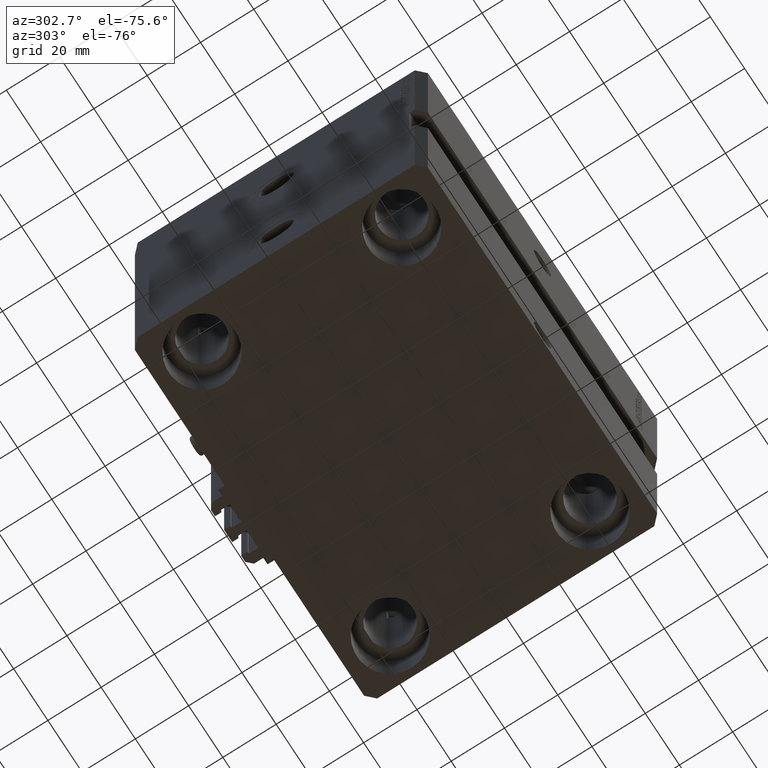
[diagram: clean part render]
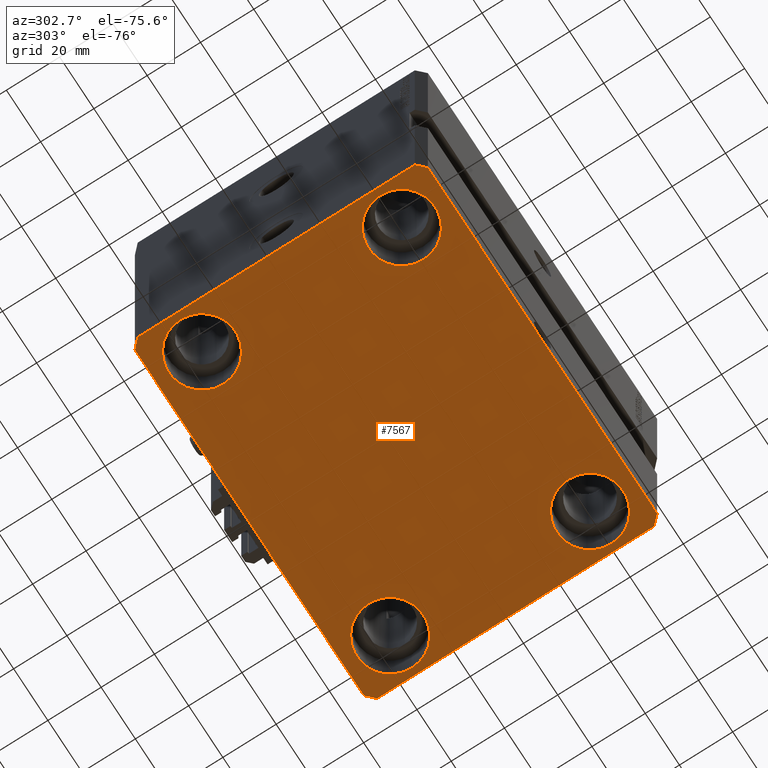
[diagram: same view with one face highlighted and labeled with its STEP entity id]
A machine part, auxiliary view. The second image highlights one B-rep face of the part: STEP entity #7567.
In plain terms, the highlighted planar face has unit normal (0, 0, 1).
Its self-contained STEP definition (entity closure, byte-faithful):
#1374 = VERTEX_POINT ( 'NONE', #33321 ) ;
#1513 = DIRECTION ( 'NONE',  ( -0.000000000000000000, -0.000000000000000000, 1.000000000000000000 ) ) ;
#1596 = EDGE_LOOP ( 'NONE', ( #12694, #15180 ) ) ;
#1651 = DIRECTION ( 'NONE',  ( 1.000000000000000000, 0.000000000000000000, 0.000000000000000000 ) ) ;
#3026 = EDGE_LOOP ( 'NONE', ( #34161, #3266 ) ) ;
#3266 = ORIENTED_EDGE ( 'NONE', *, *, #16959, .T. ) ;
#3588 = VERTEX_POINT ( 'NONE', #41423 ) ;
#3615 = CARTESIAN_POINT ( 'NONE',  ( -67.50000000000000000, 37.49999999999999289, -120.0000000000000000 ) ) ;
#4961 = EDGE_CURVE ( 'NONE', #3588, #1374, #16982, .T. ) ;
#5121 = VECTOR ( 'NONE', #36712, 1000.000000000000000 ) ;
#5519 = VERTEX_POINT ( 'NONE', #13103 ) ;
#5871 = CARTESIAN_POINT ( 'NONE',  ( -67.00000000000001421, -55.00000000000000000, -120.0000000000000000 ) ) ;
#5914 = LINE ( 'NONE', #47363, #9176 ) ;
#5928 = CIRCLE ( 'NONE', #20895, 12.49999999999999645 ) ;
#6292 = VERTEX_POINT ( 'NONE', #17951 ) ;
#6494 = CARTESIAN_POINT ( 'NONE',  ( 67.50000000000000000, -37.50000000000000711, -120.0000000000000000 ) ) ;
#6601 = DIRECTION ( 'NONE',  ( -0.000000000000000000, -0.000000000000000000, 1.000000000000000000 ) ) ;
#6965 = ORIENTED_EDGE ( 'NONE', *, *, #14243, .T. ) ;
#7008 = CIRCLE ( 'NONE', #36926, 12.49999999999999645 ) ;
#7246 = ORIENTED_EDGE ( 'NONE', *, *, #18229, .F. ) ;
#7567 = ADVANCED_FACE ( 'NONE', ( #27730, #28683, #43021, #36348, #24508 ), #32631, .F. ) ;
#7602 = VERTEX_POINT ( 'NONE', #18840 ) ;
#8558 = AXIS2_PLACEMENT_3D ( 'NONE', #43746, #24019, #13420 ) ;
#8694 = LINE ( 'NONE', #42004, #32530 ) ;
#8928 = CARTESIAN_POINT ( 'NONE',  ( -55.00000000000000711, -37.50000000000000711, -120.0000000000000000 ) ) ;
#9176 = VECTOR ( 'NONE', #43672, 1000.000000000000000 ) ;
#9186 = LINE ( 'NONE', #28409, #42195 ) ;
#9465 = ORIENTED_EDGE ( 'NONE', *, *, #31473, .F. ) ;
#9580 = CARTESIAN_POINT ( 'NONE',  ( -67.00000000000000000, 55.00000000000000000, -120.0000000000000000 ) ) ;
#9596 = LINE ( 'NONE', #5871, #5121 ) ;
#9608 = LINE ( 'NONE', #13791, #28006 ) ;
#9731 = CARTESIAN_POINT ( 'NONE',  ( -55.00000000000000711, 37.49999999999999289, -120.0000000000000000 ) ) ;
#10124 = DIRECTION ( 'NONE',  ( 1.000000000000000000, 0.000000000000000000, 0.000000000000000000 ) ) ;
#10193 = VECTOR ( 'NONE', #46591, 1000.000000000000114 ) ;
#10360 = AXIS2_PLACEMENT_3D ( 'NONE', #9731, #21066, #17388 ) ;
#10710 = EDGE_LOOP ( 'NONE', ( #42397, #20787, #7246, #45700, #27738, #9465, #48241, #39169 ) ) ;
#12354 = CARTESIAN_POINT ( 'NONE',  ( -67.00000000000001421, -55.00000000000000000, -120.0000000000000000 ) ) ;
#12694 = ORIENTED_EDGE ( 'NONE', *, *, #38092, .T. ) ;
#13101 = DIRECTION ( 'NONE',  ( 1.000000000000000000, 0.000000000000000000, 0.000000000000000000 ) ) ;
#13103 = CARTESIAN_POINT ( 'NONE',  ( -67.50000000000000000, -37.50000000000000711, -120.0000000000000000 ) ) ;
#13263 = EDGE_CURVE ( 'NONE', #1374, #35241, #19886, .T. ) ;
#13402 = EDGE_LOOP ( 'NONE', ( #43271, #24282 ) ) ;
#13420 = DIRECTION ( 'NONE',  ( 1.000000000000000000, 0.000000000000000000, -0.000000000000000000 ) ) ;
#13791 = CARTESIAN_POINT ( 'NONE',  ( 70.00000000000056843, 51.99999999999996447, -120.0000000000000000 ) ) ;
#14243 = EDGE_CURVE ( 'NONE', #47674, #6292, #18247, .T. ) ;
#14542 = CARTESIAN_POINT ( 'NONE',  ( -55.00000000000000711, 37.49999999999999289, -120.0000000000000000 ) ) ;
#15180 = ORIENTED_EDGE ( 'NONE', *, *, #28015, .T. ) ;
#15438 = AXIS2_PLACEMENT_3D ( 'NONE', #16714, #24100, #1651 ) ;
#16193 = CARTESIAN_POINT ( 'NONE',  ( -69.99999999999998579, 51.99999999999999289, -120.0000000000000000 ) ) ;
#16226 = CARTESIAN_POINT ( 'NONE',  ( 70.00000000000000000, -51.99999999999999289, -120.0000000000000000 ) ) ;
#16581 = DIRECTION ( 'NONE',  ( 1.000000000000000000, 0.000000000000000000, 0.000000000000000000 ) ) ;
#16714 = CARTESIAN_POINT ( 'NONE',  ( 55.00000000000000711, 37.50000000000002132, -120.0000000000000000 ) ) ;
#16959 = EDGE_CURVE ( 'NONE', #27239, #27109, #39613, .T. ) ;
#16982 = LINE ( 'NONE', #9580, #10193 ) ;
#17388 = DIRECTION ( 'NONE',  ( 1.000000000000000000, 0.000000000000000000, 0.000000000000000000 ) ) ;
#17951 = CARTESIAN_POINT ( 'NONE',  ( -42.50000000000000711, 37.49999999999999289, -120.0000000000000000 ) ) ;
#18229 = EDGE_CURVE ( 'NONE', #44600, #44473, #8694, .T. ) ;
#18247 = CIRCLE ( 'NONE', #10360, 12.49999999999999645 ) ;
#18840 = CARTESIAN_POINT ( 'NONE',  ( 67.00000000000001421, -54.99999999999997868, -120.0000000000000000 ) ) ;
#18974 = DIRECTION ( 'NONE',  ( 0.7071067811865474617, 0.7071067811865474617, 0.000000000000000000 ) ) ;
#19124 = CARTESIAN_POINT ( 'NONE',  ( -70.00000000000001421, -51.99999999999999289, -120.0000000000000000 ) ) ;
#19384 = EDGE_LOOP ( 'NONE', ( #6965, #41045 ) ) ;
#19886 = LINE ( 'NONE', #16193, #26861 ) ;
#20787 = ORIENTED_EDGE ( 'NONE', *, *, #27777, .F. ) ;
#20895 = AXIS2_PLACEMENT_3D ( 'NONE', #8928, #1513, #16581 ) ;
#20976 = VERTEX_POINT ( 'NONE', #12354 ) ;
#21066 = DIRECTION ( 'NONE',  ( -0.000000000000000000, -0.000000000000000000, 1.000000000000000000 ) ) ;
#21181 = DIRECTION ( 'NONE',  ( 1.000000000000000000, 0.000000000000000000, 0.000000000000000000 ) ) ;
#21201 = DIRECTION ( 'NONE',  ( -0.000000000000000000, -0.000000000000000000, 1.000000000000000000 ) ) ;
#22092 = LINE ( 'NONE', #19124, #37655 ) ;
#23944 = EDGE_CURVE ( 'NONE', #7602, #44600, #9186, .T. ) ;
#24019 = DIRECTION ( 'NONE',  ( 0.000000000000000000, 0.000000000000000000, 1.000000000000000000 ) ) ;
#24100 = DIRECTION ( 'NONE',  ( -0.000000000000000000, -0.000000000000000000, 1.000000000000000000 ) ) ;
#24282 = ORIENTED_EDGE ( 'NONE', *, *, #41420, .T. ) ;
#24508 = FACE_OUTER_BOUND ( 'NONE', #10710, .T. ) ;
#24878 = DIRECTION ( 'NONE',  ( -0.7071067811865344721, 0.7071067811865606734, 0.000000000000000000 ) ) ;
#25143 = EDGE_CURVE ( 'NONE', #6292, #47674, #47596, .T. ) ;
#25885 = DIRECTION ( 'NONE',  ( 1.000000000000000000, 0.000000000000000000, 0.000000000000000000 ) ) ;
#26023 = CIRCLE ( 'NONE', #28359, 12.49999999999999645 ) ;
#26337 = AXIS2_PLACEMENT_3D ( 'NONE', #14542, #21201, #25885 ) ;
#26679 = EDGE_CURVE ( 'NONE', #5519, #44116, #5928, .T. ) ;
#26760 = CARTESIAN_POINT ( 'NONE',  ( 67.00000000000061107, 55.00000000000002132, -120.0000000000000000 ) ) ;
#26861 = VECTOR ( 'NONE', #34919, 1000.000000000000000 ) ;
#26961 = EDGE_CURVE ( 'NONE', #20976, #7602, #9596, .T. ) ;
#27109 = VERTEX_POINT ( 'NONE', #43277 ) ;
#27239 = VERTEX_POINT ( 'NONE', #6494 ) ;
#27730 = FACE_BOUND ( 'NONE', #13402, .T. ) ;
#27738 = ORIENTED_EDGE ( 'NONE', *, *, #26961, .F. ) ;
#27777 = EDGE_CURVE ( 'NONE', #44473, #34499, #9608, .T. ) ;
#28006 = VECTOR ( 'NONE', #24878, 1000.000000000000000 ) ;
#28015 = EDGE_CURVE ( 'NONE', #29424, #28725, #36682, .T. ) ;
#28359 = AXIS2_PLACEMENT_3D ( 'NONE', #39966, #32549, #10124 ) ;
#28409 = CARTESIAN_POINT ( 'NONE',  ( 67.00000000000001421, -54.99999999999997868, -120.0000000000000000 ) ) ;
#28680 = EDGE_CURVE ( 'NONE', #27109, #27239, #33591, .T. ) ;
#28683 = FACE_BOUND ( 'NONE', #3026, .T. ) ;
#28725 = VERTEX_POINT ( 'NONE', #45929 ) ;
#28850 = AXIS2_PLACEMENT_3D ( 'NONE', #39009, #38530, #13101 ) ;
#29424 = VERTEX_POINT ( 'NONE', #35559 ) ;
#30208 = DIRECTION ( 'NONE',  ( 0.7071067811865466846, -0.7071067811865483499, 0.000000000000000000 ) ) ;
#31473 = EDGE_CURVE ( 'NONE', #35241, #20976, #22092, .T. ) ;
#31563 = CARTESIAN_POINT ( 'NONE',  ( 70.00000000000056843, 51.99999999999996447, -120.0000000000000000 ) ) ;
#32530 = VECTOR ( 'NONE', #34118, 1000.000000000000000 ) ;
#32549 = DIRECTION ( 'NONE',  ( -0.000000000000000000, -0.000000000000000000, 1.000000000000000000 ) ) ;
#32631 = PLANE ( 'NONE',  #8558 ) ;
#33321 = CARTESIAN_POINT ( 'NONE',  ( -69.99999999999998579, 51.99999999999999289, -120.0000000000000000 ) ) ;
#33591 = CIRCLE ( 'NONE', #28850, 12.49999999999999645 ) ;
#34118 = DIRECTION ( 'NONE',  ( 5.337610695313255329E-15, 1.000000000000000000, 0.000000000000000000 ) ) ;
#34161 = ORIENTED_EDGE ( 'NONE', *, *, #28680, .T. ) ;
#34499 = VERTEX_POINT ( 'NONE', #26760 ) ;
#34919 = DIRECTION ( 'NONE',  ( -2.668805347656626678E-16, -1.000000000000000000, 0.000000000000000000 ) ) ;
#35241 = VERTEX_POINT ( 'NONE', #38957 ) ;
#35559 = CARTESIAN_POINT ( 'NONE',  ( 67.50000000000000000, 37.50000000000002132, -120.0000000000000000 ) ) ;
#36348 = FACE_BOUND ( 'NONE', #19384, .T. ) ;
#36682 = CIRCLE ( 'NONE', #15438, 12.49999999999999645 ) ;
#36712 = DIRECTION ( 'NONE',  ( 1.000000000000000000, 1.553483709829976241E-16, 0.000000000000000000 ) ) ;
#36926 = AXIS2_PLACEMENT_3D ( 'NONE', #47069, #6601, #44354 ) ;
#37655 = VECTOR ( 'NONE', #30208, 1000.000000000000000 ) ;
#37764 = CARTESIAN_POINT ( 'NONE',  ( -42.50000000000000711, -37.50000000000000711, -120.0000000000000000 ) ) ;
#38092 = EDGE_CURVE ( 'NONE', #28725, #29424, #7008, .T. ) ;
#38530 = DIRECTION ( 'NONE',  ( -0.000000000000000000, -0.000000000000000000, 1.000000000000000000 ) ) ;
#38957 = CARTESIAN_POINT ( 'NONE',  ( -70.00000000000001421, -51.99999999999999289, -120.0000000000000000 ) ) ;
#39009 = CARTESIAN_POINT ( 'NONE',  ( 55.00000000000000711, -37.50000000000000711, -120.0000000000000000 ) ) ;
#39169 = ORIENTED_EDGE ( 'NONE', *, *, #4961, .F. ) ;
#39613 = CIRCLE ( 'NONE', #40397, 12.49999999999999645 ) ;
#39966 = CARTESIAN_POINT ( 'NONE',  ( -55.00000000000000711, -37.50000000000000711, -120.0000000000000000 ) ) ;
#40188 = DIRECTION ( 'NONE',  ( -0.000000000000000000, -0.000000000000000000, 1.000000000000000000 ) ) ;
#40397 = AXIS2_PLACEMENT_3D ( 'NONE', #48067, #40188, #21181 ) ;
#41045 = ORIENTED_EDGE ( 'NONE', *, *, #25143, .T. ) ;
#41420 = EDGE_CURVE ( 'NONE', #44116, #5519, #26023, .T. ) ;
#41423 = CARTESIAN_POINT ( 'NONE',  ( -67.00000000000000000, 55.00000000000000000, -120.0000000000000000 ) ) ;
#42004 = CARTESIAN_POINT ( 'NONE',  ( 70.00000000000000000, -51.99999999999999289, -120.0000000000000000 ) ) ;
#42195 = VECTOR ( 'NONE', #18974, 1000.000000000000114 ) ;
#42397 = ORIENTED_EDGE ( 'NONE', *, *, #45297, .F. ) ;
#43021 = FACE_BOUND ( 'NONE', #1596, .T. ) ;
#43271 = ORIENTED_EDGE ( 'NONE', *, *, #26679, .T. ) ;
#43277 = CARTESIAN_POINT ( 'NONE',  ( 42.50000000000000711, -37.50000000000000711, -120.0000000000000000 ) ) ;
#43672 = DIRECTION ( 'NONE',  ( -1.000000000000000000, -1.553483709829969339E-16, 0.000000000000000000 ) ) ;
#43746 = CARTESIAN_POINT ( 'NONE',  ( 0.000000000000000000, 0.000000000000000000, -120.0000000000000000 ) ) ;
#44116 = VERTEX_POINT ( 'NONE', #37764 ) ;
#44354 = DIRECTION ( 'NONE',  ( 1.000000000000000000, 0.000000000000000000, 0.000000000000000000 ) ) ;
#44473 = VERTEX_POINT ( 'NONE', #31563 ) ;
#44600 = VERTEX_POINT ( 'NONE', #16226 ) ;
#45297 = EDGE_CURVE ( 'NONE', #34499, #3588, #5914, .T. ) ;
#45700 = ORIENTED_EDGE ( 'NONE', *, *, #23944, .F. ) ;
#45929 = CARTESIAN_POINT ( 'NONE',  ( 42.50000000000000711, 37.50000000000002132, -120.0000000000000000 ) ) ;
#46591 = DIRECTION ( 'NONE',  ( -0.7071067811865451302, -0.7071067811865500152, 0.000000000000000000 ) ) ;
#47069 = CARTESIAN_POINT ( 'NONE',  ( 55.00000000000000711, 37.50000000000002132, -120.0000000000000000 ) ) ;
#47363 = CARTESIAN_POINT ( 'NONE',  ( 67.00000000000061107, 55.00000000000002132, -120.0000000000000000 ) ) ;
#47596 = CIRCLE ( 'NONE', #26337, 12.49999999999999645 ) ;
#47674 = VERTEX_POINT ( 'NONE', #3615 ) ;
#48067 = CARTESIAN_POINT ( 'NONE',  ( 55.00000000000000711, -37.50000000000000711, -120.0000000000000000 ) ) ;
#48241 = ORIENTED_EDGE ( 'NONE', *, *, #13263, .F. ) ;